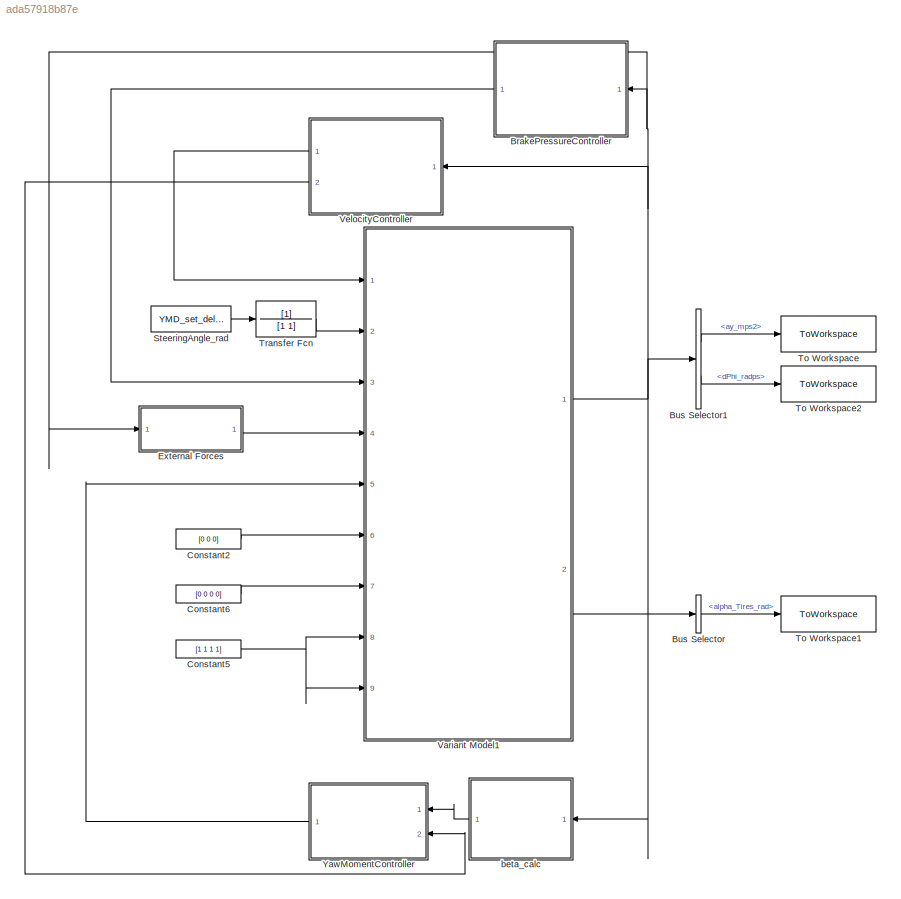
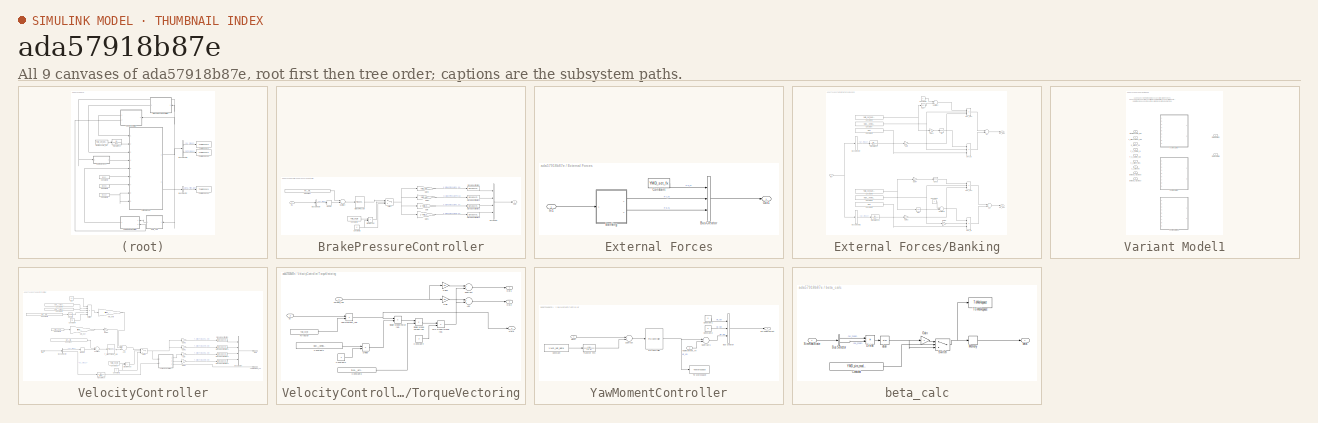
[diagram: thumbnail index - all 9 canvases of the model, root first then tree order]
MODEL slx_ada57918b87e
KIND model
WORKSPACE source: MAT-file member
WORKSPACE MCOS: class17 (value not decoded)
BLOCK [SubSystem] BrakePressureController
  Ports = [1, 1]
  RequestExecContextInheritance = off
BLOCK [Reference] BrakePressureController/BrakePressure  REF=simulink/Continuous/PID Controller
  Ports = [1, 1]
  SourceBlock = simulink/Continuous/PID Controller
  SourceProductBaseCode = SL
  SourceProductName = Simulink
  SourceType = PID 1dof
BLOCK [BusCreator] BrakePressureController/Bus Creator
  DisplayOption = bar
  InheritFromInputs = on
  Inputs = 4
  Ports = [4, 1]
BLOCK [BusSelector] BrakePressureController/Bus Selector
  OutputAsBus = off
  OutputSignals = vx_mps
  Ports = [1, 1]
BLOCK [Constant] BrakePressureController/Constant
  Value = INIT__initialvalues__Vehicle_InitialVelocity_mps__1
BLOCK [Constant] BrakePressureController/Constant1
  Value = YMD_set_fx
BLOCK [Constant] BrakePressureController/Constant2
  Value = 0
BLOCK [Gain] BrakePressureController/Gain
  Gain = 1-YMD_set_bb
  OutDataTypeStr = Inherit: Inherit via internal rule
  ParamDataTypeStr = Inherit: Inherit via internal rule
  SaturateOnIntegerOverflow = off
BLOCK [Gain] BrakePressureController/Gain1
  Gain = 1-YMD_set_bb
  OutDataTypeStr = Inherit: Inherit via internal rule
  ParamDataTypeStr = Inherit: Inherit via internal rule
  SaturateOnIntegerOverflow = off
BLOCK [Gain] BrakePressureController/Gain2
  Gain = YMD_set_bb
  OutDataTypeStr = Inherit: Inherit via internal rule
  ParamDataTypeStr = Inherit: Inherit via internal rule
  SaturateOnIntegerOverflow = off
BLOCK [Gain] BrakePressureController/Gain3
  Gain = YMD_set_bb
  OutDataTypeStr = Inherit: Inherit via internal rule
  ParamDataTypeStr = Inherit: Inherit via internal rule
  SaturateOnIntegerOverflow = off
BLOCK [RelationalOperator] BrakePressureController/GreaterThan
  InputSameDT = off
  Operator = >
  OutDataTypeStr = boolean
  Ports = [2, 1]
  RndMeth = Simplest
BLOCK [Inport] BrakePressureController/In1
  IconDisplay = Port number
BLOCK [Memory] BrakePressureController/Memory
  InitialCondition = INIT__initialvalues__Vehicle_InitialVelocity_mps__1
BLOCK [Outport] BrakePressureController/Out1
  IconDisplay = Port number
BLOCK [SignalSpecification] BrakePressureController/Signal Specification
  Dimensions = 1
BLOCK [SignalSpecification] BrakePressureController/Signal Specification1
  Dimensions = 1
BLOCK [SignalSpecification] BrakePressureController/Signal Specification2
  Dimensions = 1
BLOCK [SignalSpecification] BrakePressureController/Signal Specification3
  Dimensions = 1
BLOCK [Sum] BrakePressureController/Subtract
  InputSameDT = off
  Inputs = -+
  OutDataTypeStr = Inherit: Inherit via internal rule
  Ports = [2, 1]
  SaturateOnIntegerOverflow = off
BLOCK [Switch] BrakePressureController/Switch
  Criteria = u2 > Threshold
  InputSameDT = off
  SaturateOnIntegerOverflow = off
BLOCK [BusSelector] Bus Selector
  OutputAsBus = off
  OutputSignals = Wheel.alpha_Tires_rad
  Ports = [1, 1]
BLOCK [BusSelector] Bus Selector1
  OutputAsBus = off
  OutputSignals = ay_mps2,dPhi_radps
  Ports = [1, 2]
BLOCK [Constant] Constant2
  Value = [0 0 0]
BLOCK [Constant] Constant5
  Value = [1 1 1 1]
BLOCK [Constant] Constant6
  Value = [0 0 0 0]
BLOCK [SubSystem] External Forces
  Ports = [1, 1]
  RequestExecContextInheritance = off
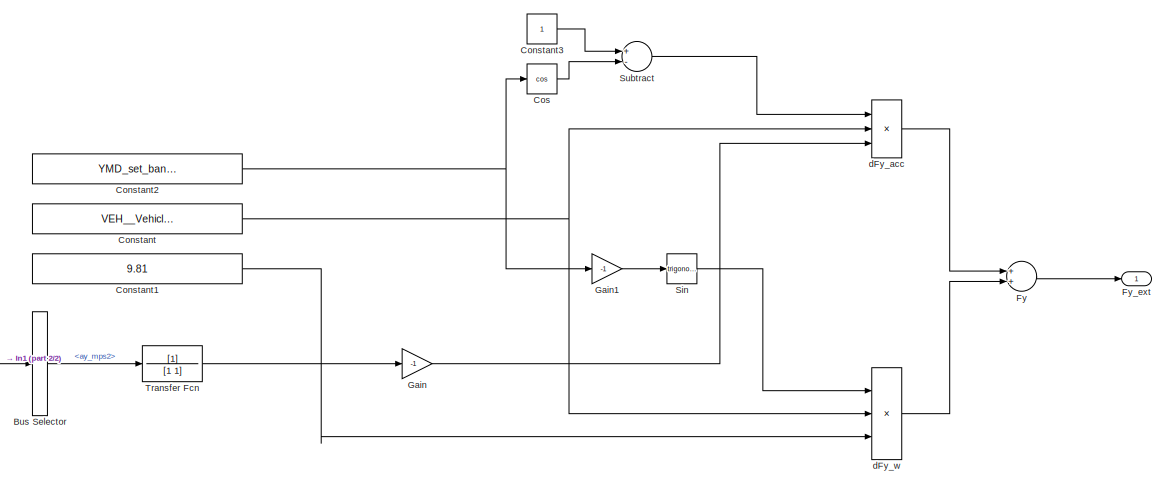
[diagram: External Forces/Banking - part 1/2, full width, top band]
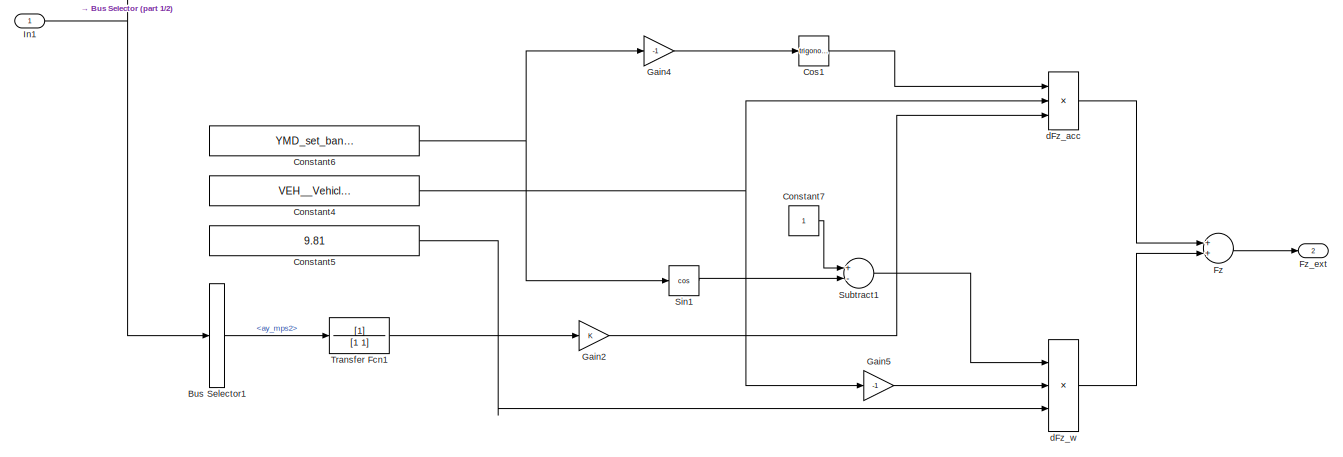
[diagram: External Forces/Banking - part 2/2, full width, bottom band]
BLOCK [SubSystem] External Forces/Banking
  Ports = [1, 2]
  RequestExecContextInheritance = off
BLOCK [BusSelector] External Forces/Banking/Bus Selector
  OutputAsBus = off
  OutputSignals = ay_mps2
  Ports = [1, 1]
BLOCK [BusSelector] External Forces/Banking/Bus Selector1
  OutputAsBus = off
  OutputSignals = ay_mps2
  Ports = [1, 1]
BLOCK [Constant] External Forces/Banking/Constant
  Value = VEH__VehicleData__m_Vehicle_kg
BLOCK [Constant] External Forces/Banking/Constant1
  Value = 9.81
BLOCK [Constant] External Forces/Banking/Constant2
  Value = YMD_set_banking
BLOCK [Constant] External Forces/Banking/Constant3
BLOCK [Constant] External Forces/Banking/Constant4
  Value = VEH__VehicleData__m_Vehicle_kg
BLOCK [Constant] External Forces/Banking/Constant5
  Value = 9.81
BLOCK [Constant] External Forces/Banking/Constant6
  Value = YMD_set_banking
BLOCK [Constant] External Forces/Banking/Constant7
BLOCK [Trigonometry] External Forces/Banking/Cos
  Operator = cos
  Ports = [1, 1]
BLOCK [Trigonometry] External Forces/Banking/Cos1
  Ports = [1, 1]
BLOCK [Sum] External Forces/Banking/Fy
  InputSameDT = off
  OutDataTypeStr = Inherit: Inherit via internal rule
  Ports = [2, 1]
  SaturateOnIntegerOverflow = off
BLOCK [Outport] External Forces/Banking/Fy_ext
  IconDisplay = Port number
BLOCK [Sum] External Forces/Banking/Fz
  InputSameDT = off
  OutDataTypeStr = Inherit: Inherit via internal rule
  Ports = [2, 1]
  SaturateOnIntegerOverflow = off
BLOCK [Outport] External Forces/Banking/Fz_ext
  IconDisplay = Port number
  Port = 2
BLOCK [Gain] External Forces/Banking/Gain
  Gain = -1
  OutDataTypeStr = Inherit: Inherit via internal rule
  ParamDataTypeStr = Inherit: Inherit via internal rule
  SaturateOnIntegerOverflow = off
BLOCK [Gain] External Forces/Banking/Gain1
  Gain = -1
  OutDataTypeStr = Inherit: Inherit via internal rule
  ParamDataTypeStr = Inherit: Inherit via internal rule
  SaturateOnIntegerOverflow = off
BLOCK [Gain] External Forces/Banking/Gain2
  OutDataTypeStr = Inherit: Inherit via internal rule
  ParamDataTypeStr = Inherit: Inherit via internal rule
  SaturateOnIntegerOverflow = off
BLOCK [Gain] External Forces/Banking/Gain4
  Gain = -1
  OutDataTypeStr = Inherit: Inherit via internal rule
  ParamDataTypeStr = Inherit: Inherit via internal rule
  SaturateOnIntegerOverflow = off
BLOCK [Gain] External Forces/Banking/Gain5
  Gain = -1
  OutDataTypeStr = Inherit: Inherit via internal rule
  ParamDataTypeStr = Inherit: Inherit via internal rule
  SaturateOnIntegerOverflow = off
BLOCK [Inport] External Forces/Banking/In1
  IconDisplay = Port number
BLOCK [Trigonometry] External Forces/Banking/Sin
  Ports = [1, 1]
BLOCK [Trigonometry] External Forces/Banking/Sin1
  Operator = cos
  Ports = [1, 1]
BLOCK [Sum] External Forces/Banking/Subtract
  InputSameDT = off
  Inputs = +-
  OutDataTypeStr = Inherit: Inherit via internal rule
  Ports = [2, 1]
  SaturateOnIntegerOverflow = off
BLOCK [Sum] External Forces/Banking/Subtract1
  InputSameDT = off
  Inputs = +-
  OutDataTypeStr = Inherit: Inherit via internal rule
  Ports = [2, 1]
  SaturateOnIntegerOverflow = off
BLOCK [TransferFcn] External Forces/Banking/Transfer Fcn
  Denominator = [1 1]
BLOCK [TransferFcn] External Forces/Banking/Transfer Fcn1
  Denominator = [1 1]
BLOCK [Product] External Forces/Banking/dFy_acc
  InputSameDT = off
  Inputs = 3
  OutDataTypeStr = Inherit: Inherit via internal rule
  Ports = [3, 1]
  RndMeth = Floor
  SaturateOnIntegerOverflow = off
BLOCK [Product] External Forces/Banking/dFy_w
  InputSameDT = off
  Inputs = 3
  OutDataTypeStr = Inherit: Inherit via internal rule
  Ports = [3, 1]
  RndMeth = Floor
  SaturateOnIntegerOverflow = off
BLOCK [Product] External Forces/Banking/dFz_acc
  InputSameDT = off
  Inputs = 3
  OutDataTypeStr = Inherit: Inherit via internal rule
  Ports = [3, 1]
  RndMeth = Floor
  SaturateOnIntegerOverflow = off
BLOCK [Product] External Forces/Banking/dFz_w
  InputSameDT = off
  Inputs = 3
  OutDataTypeStr = Inherit: Inherit via internal rule
  Ports = [3, 1]
  RndMeth = Floor
  SaturateOnIntegerOverflow = off
BLOCK [BusCreator] External Forces/Bus Creator
  DisplayOption = bar
  InheritFromInputs = on
  Inputs = 3
  Ports = [3, 1]
BLOCK [Constant] External Forces/Constant
  Value = YMD_set_fx
BLOCK [Inport] External Forces/In1
  IconDisplay = Port number
BLOCK [Outport] External Forces/Out1
  IconDisplay = Port number
BLOCK [Constant] SteeringAngle_rad
  Value = YMD_set_delta
BLOCK [ToWorkspace] To Workspace
  FixptAsFi = on
  MaxDataPoints = inf
  Ports = [1]
  SampleTime = -1
  Save2DSignal = 3-D array (concatenate along third dimension)
  SaveFormat = Timeseries
  VariableName = ay_mps2
BLOCK [ToWorkspace] To Workspace1
  FixptAsFi = on
  MaxDataPoints = inf
  Ports = [1]
  SampleTime = -1
  Save2DSignal = 3-D array (concatenate along third dimension)
  SaveFormat = Timeseries
  VariableName = alpha_rad
BLOCK [ToWorkspace] To Workspace2
  FixptAsFi = on
  MaxDataPoints = inf
  Ports = [1]
  SampleTime = -1
  Save2DSignal = 3-D array (concatenate along third dimension)
  SaveFormat = Timeseries
  VariableName = dphi_radps
BLOCK [TransferFcn] Transfer Fcn
  Denominator = [1 1]
BLOCK [SubSystem] Variant Model1
  Ports = [9, 2]
  RequestExecContextInheritance = off
  Variant = on
BLOCK [Inport] Variant Model1/F_K_Extern_N
  IconDisplay = Port number
  Port = 4
  PortDimensions = 3
BLOCK [Outport] Variant Model1/SimInformation
  IconDisplay = Port number
  OutDataTypeStr = Bus: SimInformation
  Port = 2
BLOCK [Outport] Variant Model1/SimRealState
  IconDisplay = Port number
  OutDataTypeStr = Bus: SimRealState
BLOCK [Inport] Variant Model1/SteeringAngle_rad
  IconDisplay = Port number
  Port = 2
BLOCK [Inport] Variant Model1/T_DriveTorque_Nm
  IconDisplay = Port number
BLOCK [Inport] Variant Model1/T_K_Extern_Nm
  IconDisplay = Port number
  Port = 5
  PortDimensions = 3
BLOCK [Inport] Variant Model1/lambda_Tji_muex
  IconDisplay = Port number
  Port = 8
  PortDimensions = 4
BLOCK [Inport] Variant Model1/lambda_Tji_muey
  IconDisplay = Port number
  Port = 9
  PortDimensions = 4
BLOCK [ModelReference] Variant Model1/nonlineardtm
  ModelNameDialog = nonlineardtm.slx
  ModelReferenceVersion = 1.737
  ParameterArgumentNames = x0_initialstates
  ParameterArgumentValues = [0 0 0 0 0 -pi/2]
  Ports = [9, 2]
  UsingDefaultArgumentValue = 0
  VariantControl = YMD_sim_model==1
BLOCK [ModelReference] Variant Model1/nonlineardtm V2
  ModelNameDialog = ndtm_V2.slx
  ModelReferenceVersion = 1.344
  ParameterArgumentNames = x0_initialstates
  ParameterArgumentValues = [0 0 0 0 0 -pi/2]
  Ports = [9, 2]
  UsingDefaultArgumentValue = 0
  VariantControl = YMD_sim_model==3
BLOCK [ModelReference] Variant Model1/nonlinearstm
  ModelNameDialog = nonlinearstm.slx
  ModelReferenceVersion = 1.404
  ParameterArgumentNames = x0_positionstates
  ParameterArgumentValues = [0 0 0]
  Ports = [9, 2]
  UsingDefaultArgumentValue = 0
  VariantControl = YMD_sim_model==2
BLOCK [Inport] Variant Model1/p_Brake_pa
  IconDisplay = Port number
  Port = 3
BLOCK [Inport] Variant Model1/v_I_Wind_mps
  IconDisplay = Port number
  Port = 6
  PortDimensions = 3
BLOCK [Inport] Variant Model1/z_I_Ground
  IconDisplay = Port number
  Port = 7
  PortDimensions = 4
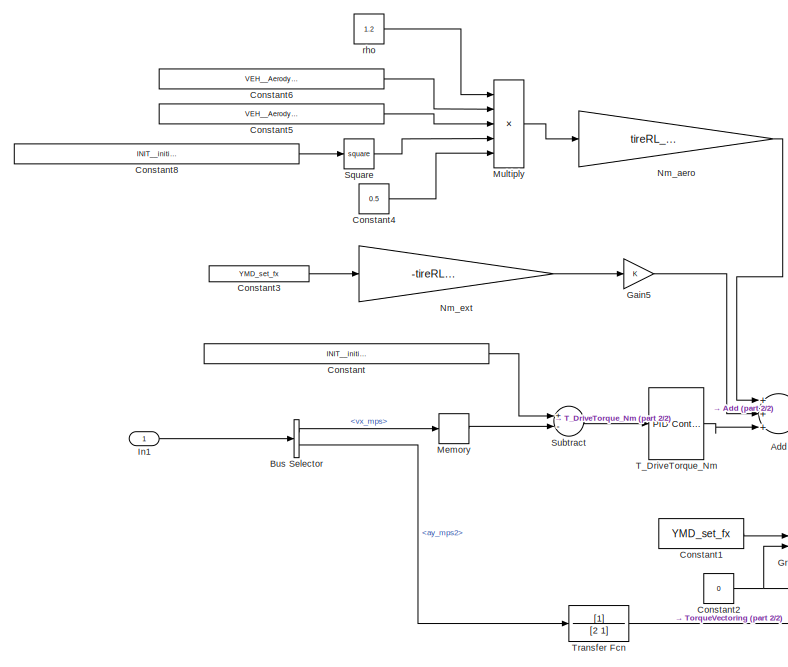
[diagram: VelocityController - part 1/2, left side, full height]
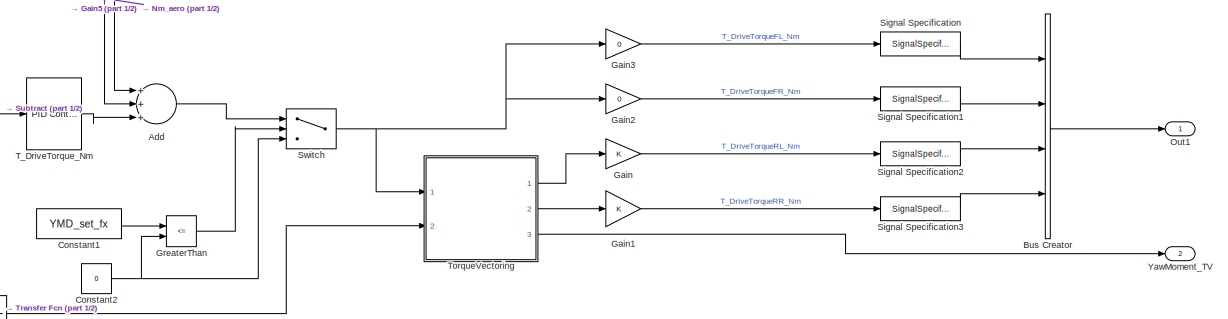
[diagram: VelocityController - part 2/2, bottom center region]
BLOCK [SubSystem] VelocityController
  Ports = [1, 2]
  RequestExecContextInheritance = off
BLOCK [Sum] VelocityController/Add
  InputSameDT = off
  Inputs = +++
  OutDataTypeStr = Inherit: Inherit via internal rule
  Ports = [3, 1]
  SaturateOnIntegerOverflow = off
BLOCK [BusCreator] VelocityController/Bus Creator
  DisplayOption = bar
  InheritFromInputs = on
  Inputs = 4
  Ports = [4, 1]
BLOCK [BusSelector] VelocityController/Bus Selector
  OutputAsBus = off
  OutputSignals = vx_mps,ay_mps2
  Ports = [1, 2]
BLOCK [Constant] VelocityController/Constant
  Value = INIT__initialvalues__Vehicle_InitialVelocity_mps__1
BLOCK [Constant] VelocityController/Constant1
  Value = YMD_set_fx
BLOCK [Constant] VelocityController/Constant2
  Value = 0
BLOCK [Constant] VelocityController/Constant3
  Value = YMD_set_fx
BLOCK [Constant] VelocityController/Constant4
  Value = 0.5
BLOCK [Constant] VelocityController/Constant5
  Value = VEH__Aerodynamics__A_LongitudinalDrag_m2
BLOCK [Constant] VelocityController/Constant6
  Value = VEH__Aerodynamics__cw_LongitudinalDrag
BLOCK [Constant] VelocityController/Constant8
  Value = INIT__initialvalues__Vehicle_InitialVelocity_mps__1
BLOCK [Gain] VelocityController/Gain
  OutDataTypeStr = Inherit: Inherit via internal rule
  ParamDataTypeStr = Inherit: Inherit via internal rule
  SaturateOnIntegerOverflow = off
BLOCK [Gain] VelocityController/Gain1
  OutDataTypeStr = Inherit: Inherit via internal rule
  ParamDataTypeStr = Inherit: Inherit via internal rule
  SaturateOnIntegerOverflow = off
BLOCK [Gain] VelocityController/Gain2
  Gain = 0
  OutDataTypeStr = Inherit: Inherit via internal rule
  ParamDataTypeStr = Inherit: Inherit via internal rule
  SaturateOnIntegerOverflow = off
BLOCK [Gain] VelocityController/Gain3
  Gain = 0
  OutDataTypeStr = Inherit: Inherit via internal rule
  ParamDataTypeStr = Inherit: Inherit via internal rule
  SaturateOnIntegerOverflow = off
BLOCK [Gain] VelocityController/Gain5
  OutDataTypeStr = Inherit: Inherit via internal rule
  ParamDataTypeStr = Inherit: Inherit via internal rule
  SaturateOnIntegerOverflow = off
BLOCK [RelationalOperator] VelocityController/GreaterThan
  InputSameDT = off
  Operator = <=
  OutDataTypeStr = boolean
  Ports = [2, 1]
  RndMeth = Simplest
BLOCK [Inport] VelocityController/In1
  IconDisplay = Port number
BLOCK [Memory] VelocityController/Memory
  InitialCondition = INIT__initialvalues__Vehicle_InitialVelocity_mps__1
BLOCK [Product] VelocityController/Multiply
  InputSameDT = off
  Inputs = 5
  OutDataTypeStr = Inherit: Inherit via internal rule
  Ports = [5, 1]
  RndMeth = Floor
  SaturateOnIntegerOverflow = off
BLOCK [Gain] VelocityController/Nm_aero
  Gain = tireRL__MFSIMPLE__r_tire_m
  OutDataTypeStr = Inherit: Inherit via internal rule
  ParamDataTypeStr = Inherit: Inherit via internal rule
  SaturateOnIntegerOverflow = off
BLOCK [Gain] VelocityController/Nm_ext
  Gain = -tireRL__MFSIMPLE__r_tire_m
  OutDataTypeStr = Inherit: Inherit via internal rule
  ParamDataTypeStr = Inherit: Inherit via internal rule
  SaturateOnIntegerOverflow = off
BLOCK [Outport] VelocityController/Out1
  IconDisplay = Port number
BLOCK [SignalSpecification] VelocityController/Signal Specification
  Dimensions = 1
BLOCK [SignalSpecification] VelocityController/Signal Specification1
  Dimensions = 1
BLOCK [SignalSpecification] VelocityController/Signal Specification2
  Dimensions = 1
BLOCK [SignalSpecification] VelocityController/Signal Specification3
  Dimensions = 1
BLOCK [Math] VelocityController/Square
  Operator = square
  Ports = [1, 1]
BLOCK [Sum] VelocityController/Subtract
  InputSameDT = off
  Inputs = +-
  OutDataTypeStr = Inherit: Inherit via internal rule
  Ports = [2, 1]
  SaturateOnIntegerOverflow = off
BLOCK [Switch] VelocityController/Switch
  Criteria = u2 > Threshold
  InputSameDT = off
  SaturateOnIntegerOverflow = off
BLOCK [Reference] VelocityController/T_DriveTorque_Nm  REF=simulink/Continuous/PID Controller
  Ports = [1, 1]
  SourceBlock = simulink/Continuous/PID Controller
  SourceProductBaseCode = SL
  SourceProductName = Simulink
  SourceType = PID 1dof
BLOCK [SubSystem] VelocityController/TorqueVectoring
  Ports = [2, 3]
  RequestExecContextInheritance = off
BLOCK [Sum] VelocityController/TorqueVectoring/Add
  InputSameDT = off
  OutDataTypeStr = Inherit: Inherit via internal rule
  Ports = [2, 1]
  SaturateOnIntegerOverflow = off
BLOCK [Constant] VelocityController/TorqueVectoring/Constant1
  Value = VEH__VehicleData__w_TrackR_m
BLOCK [Constant] VelocityController/TorqueVectoring/Constant2
  Value = 2
BLOCK [Constant] VelocityController/TorqueVectoring/Constant3
  Value = tireRL__MFSIMPLE__r_tire_m
BLOCK [Constant] VelocityController/TorqueVectoring/Constant4
  Value = 2
BLOCK [Product] VelocityController/TorqueVectoring/Divide
  InputSameDT = off
  Inputs = */
  OutDataTypeStr = Inherit: Inherit via internal rule
  Ports = [2, 1]
  RndMeth = Floor
  SaturateOnIntegerOverflow = off
BLOCK [Gain] VelocityController/TorqueVectoring/Gain
  Gain = 0.5
  OutDataTypeStr = Inherit: Inherit via internal rule
  ParamDataTypeStr = Inherit: Inherit via internal rule
  SaturateOnIntegerOverflow = off
BLOCK [Gain] VelocityController/TorqueVectoring/Gain1
  Gain = 0.5
  OutDataTypeStr = Inherit: Inherit via internal rule
  ParamDataTypeStr = Inherit: Inherit via internal rule
  SaturateOnIntegerOverflow = off
BLOCK [Outport] VelocityController/TorqueVectoring/Out1
  IconDisplay = Port number
BLOCK [Outport] VelocityController/TorqueVectoring/Out2
  IconDisplay = Port number
  Port = 2
BLOCK [Outport] VelocityController/TorqueVectoring/Out3
  IconDisplay = Port number
  Port = 3
BLOCK [Product] VelocityController/TorqueVectoring/Single Wheel Force req.
  InputSameDT = off
  Inputs = */
  OutDataTypeStr = Inherit: Inherit via internal rule
  Ports = [2, 1]
  RndMeth = Floor
  SaturateOnIntegerOverflow = off
BLOCK [Product] VelocityController/TorqueVectoring/Single Wheel Torque req.
  InputSameDT = off
  OutDataTypeStr = Inherit: Inherit via internal rule
  Ports = [2, 1]
  RndMeth = Floor
  SaturateOnIntegerOverflow = off
BLOCK [Sum] VelocityController/TorqueVectoring/Subtract
  InputSameDT = off
  Inputs = +-
  OutDataTypeStr = Inherit: Inherit via internal rule
  Ports = [2, 1]
  SaturateOnIntegerOverflow = off
BLOCK [Constant] VelocityController/TorqueVectoring/TV factor
  Value = YMD_set_tv
BLOCK [Inport] VelocityController/TorqueVectoring/Torque_req
  IconDisplay = Port number
BLOCK [Product] VelocityController/TorqueVectoring/Two wheel torque req.
  InputSameDT = off
  Inputs = */
  OutDataTypeStr = Inherit: Inherit via internal rule
  Ports = [2, 1]
  RndMeth = Floor
  SaturateOnIntegerOverflow = off
BLOCK [Product] VelocityController/TorqueVectoring/Yawmoment_req
  InputSameDT = off
  OutDataTypeStr = Inherit: Inherit via internal rule
  Ports = [2, 1]
  RndMeth = Floor
  SaturateOnIntegerOverflow = off
BLOCK [Inport] VelocityController/TorqueVectoring/ay
  IconDisplay = Port number
  Port = 2
BLOCK [TransferFcn] VelocityController/Transfer Fcn
  Denominator = [2 1]
BLOCK [Outport] VelocityController/YawMoment_TV
  IconDisplay = Port number
  Port = 2
BLOCK [Constant] VelocityController/rho
  Value = 1.2
BLOCK [SubSystem] YawMomentController
  Ports = [2, 1]
  RequestExecContextInheritance = off
BLOCK [BusCreator] YawMomentController/Bus Creator
  DisplayOption = bar
  InheritFromInputs = on
  Inputs = 3
  Ports = [3, 1]
BLOCK [Constant] YawMomentController/Constant
  Value = YMD_set_beta
BLOCK [Constant] YawMomentController/Constant1
  Value = 0
BLOCK [Constant] YawMomentController/Constant2
  Value = 0
BLOCK [Reference] YawMomentController/PID Controller  REF=simulink/Continuous/PID Controller
  Ports = [1, 1]
  SourceBlock = simulink/Continuous/PID Controller
  SourceProductBaseCode = SL
  SourceProductName = Simulink
  SourceType = PID 1dof
BLOCK [Sum] YawMomentController/Subtract
  InputSameDT = off
  Inputs = -+
  OutDataTypeStr = Inherit: Inherit via internal rule
  Ports = [2, 1]
  SaturateOnIntegerOverflow = off
BLOCK [Sum] YawMomentController/Subtract1
  InputSameDT = off
  Inputs = +-
  OutDataTypeStr = Inherit: Inherit via internal rule
  Ports = [2, 1]
  SaturateOnIntegerOverflow = off
BLOCK [ToWorkspace] YawMomentController/To Workspace
  FixptAsFi = on
  MaxDataPoints = inf
  Ports = [1]
  SampleTime = -1
  Save2DSignal = 3-D array (concatenate along third dimension)
  SaveFormat = Timeseries
  VariableName = YMD_extYawMoment
BLOCK [TransferFcn] YawMomentController/Transfer Fcn
  Denominator = [1 1]
BLOCK [Inport] YawMomentController/YawMoment_TV
  IconDisplay = Port number
  Port = 2
BLOCK [Inport] YawMomentController/beta
  IconDisplay = Port number
BLOCK [Outport] YawMomentController/extYawMoment
  IconDisplay = Port number
BLOCK [SubSystem] beta_calc
  Ports = [1, 1]
  RequestExecContextInheritance = off
BLOCK [BusSelector] beta_calc/Bus Selector
  OutputAsBus = off
  OutputSignals = vy_mps,vx_mps
  Ports = [1, 2]
BLOCK [Constant] beta_calc/Constant
  Value = YMD_sim_model
BLOCK [Product] beta_calc/Divide
  InputSameDT = off
  Inputs = */
  OutDataTypeStr = Inherit: Inherit via internal rule
  Ports = [2, 1]
  RndMeth = Floor
  SaturateOnIntegerOverflow = off
BLOCK [Gain] beta_calc/Gain
  Gain = -1
  OutDataTypeStr = Inherit: Inherit via internal rule
  ParamDataTypeStr = Inherit: Inherit via internal rule
  SaturateOnIntegerOverflow = off
BLOCK [Memory] beta_calc/Memory
BLOCK [Inport] beta_calc/SimRealState
  IconDisplay = Port number
BLOCK [Switch] beta_calc/Switch
  Criteria = u2 > Threshold
  InputSameDT = off
  SaturateOnIntegerOverflow = off
  Threshold = 1
BLOCK [ToWorkspace] beta_calc/To Workspace
  FixptAsFi = on
  MaxDataPoints = inf
  Ports = [1]
  SampleTime = -1
  Save2DSignal = 3-D array (concatenate along third dimension)
  SaveFormat = Timeseries
  VariableName = YMD_beta_calc
BLOCK [Trigonometry] beta_calc/atan
  Operator = atan
  Ports = [1, 1]
BLOCK [Outport] beta_calc/beta
  IconDisplay = Port number
ANNOTATION Variant Model1: 1) Add Subsystem or Model blocks as valid variant choices. 2) You cannot connect blocks at this level. At simulation, connectivity is automatically determined, based on the active variant and port name matching.
LINE BrakePressureController/BrakePressure:1 -> BrakePressureController/Switch:1
LINE BrakePressureController/Bus Creator:1 -> BrakePressureController/Out1:1
LINE BrakePressureController/Bus Selector:1 -> BrakePressureController/Memory:1
LINE BrakePressureController/Constant1:1 -> BrakePressureController/GreaterThan:1
NET BrakePressureController/Constant2:1 -> BrakePressureController/GreaterThan:2, BrakePressureController/Switch:3
LINE BrakePressureController/Constant:1 -> BrakePressureController/Subtract:1
LINE BrakePressureController/Gain1:1 -> BrakePressureController/Signal Specification3:1
LINE BrakePressureController/Gain2:1 -> BrakePressureController/Signal Specification1:1
LINE BrakePressureController/Gain3:1 -> BrakePressureController/Signal Specification:1
LINE BrakePressureController/Gain:1 -> BrakePressureController/Signal Specification2:1
LINE BrakePressureController/GreaterThan:1 -> BrakePressureController/Switch:2
LINE BrakePressureController/In1:1 -> BrakePressureController/Bus Selector:1
LINE BrakePressureController/Memory:1 -> BrakePressureController/Subtract:2
LINE BrakePressureController/Signal Specification1:1 -> BrakePressureController/Bus Creator:2
LINE BrakePressureController/Signal Specification2:1 -> BrakePressureController/Bus Creator:3
LINE BrakePressureController/Signal Specification3:1 -> BrakePressureController/Bus Creator:4
LINE BrakePressureController/Signal Specification:1 -> BrakePressureController/Bus Creator:1
LINE BrakePressureController/Subtract:1 -> BrakePressureController/BrakePressure:1
NET BrakePressureController/Switch:1 -> BrakePressureController/Gain1:1, BrakePressureController/Gain2:1, BrakePressureController/Gain3:1, BrakePressureController/Gain:1
LINE BrakePressureController:1 -> Variant Model1:3
LINE Bus Selector1:1 -> To Workspace:1
LINE Bus Selector1:2 -> To Workspace2:1
LINE Bus Selector:1 -> To Workspace1:1
LINE Constant2:1 -> Variant Model1:6
NET Constant5:1 -> Variant Model1:8, Variant Model1:9
LINE Constant6:1 -> Variant Model1:7
LINE External Forces/Banking/Bus Selector1:1 -> External Forces/Banking/Transfer Fcn1:1
LINE External Forces/Banking/Bus Selector:1 -> External Forces/Banking/Transfer Fcn:1
LINE External Forces/Banking/Constant1:1 -> External Forces/Banking/dFy_w:3
NET External Forces/Banking/Constant2:1 -> External Forces/Banking/Cos:1, External Forces/Banking/Gain1:1
LINE External Forces/Banking/Constant3:1 -> External Forces/Banking/Subtract:1
NET External Forces/Banking/Constant4:1 -> External Forces/Banking/Gain5:1, External Forces/Banking/dFz_acc:2
LINE External Forces/Banking/Constant5:1 -> External Forces/Banking/dFz_w:3
NET External Forces/Banking/Constant6:1 -> External Forces/Banking/Gain4:1, External Forces/Banking/Sin1:1
LINE External Forces/Banking/Constant7:1 -> External Forces/Banking/Subtract1:1
NET External Forces/Banking/Constant:1 -> External Forces/Banking/dFy_acc:2, External Forces/Banking/dFy_w:2
LINE External Forces/Banking/Cos1:1 -> External Forces/Banking/dFz_acc:1
LINE External Forces/Banking/Cos:1 -> External Forces/Banking/Subtract:2
LINE External Forces/Banking/Fy:1 -> External Forces/Banking/Fy_ext:1
LINE External Forces/Banking/Fz:1 -> External Forces/Banking/Fz_ext:1
LINE External Forces/Banking/Gain1:1 -> External Forces/Banking/Sin:1
LINE External Forces/Banking/Gain2:1 -> External Forces/Banking/dFz_acc:3
LINE External Forces/Banking/Gain4:1 -> External Forces/Banking/Cos1:1
LINE External Forces/Banking/Gain5:1 -> External Forces/Banking/dFz_w:2
LINE External Forces/Banking/Gain:1 -> External Forces/Banking/dFy_acc:3
NET External Forces/Banking/In1:1 -> External Forces/Banking/Bus Selector1:1, External Forces/Banking/Bus Selector:1
LINE External Forces/Banking/Sin1:1 -> External Forces/Banking/Subtract1:2
LINE External Forces/Banking/Sin:1 -> External Forces/Banking/dFy_w:1
LINE External Forces/Banking/Subtract1:1 -> External Forces/Banking/dFz_w:1
LINE External Forces/Banking/Subtract:1 -> External Forces/Banking/dFy_acc:1
LINE External Forces/Banking/Transfer Fcn1:1 -> External Forces/Banking/Gain2:1
LINE External Forces/Banking/Transfer Fcn:1 -> External Forces/Banking/Gain:1
LINE External Forces/Banking/dFy_acc:1 -> External Forces/Banking/Fy:1
LINE External Forces/Banking/dFy_w:1 -> External Forces/Banking/Fy:2
LINE External Forces/Banking/dFz_acc:1 -> External Forces/Banking/Fz:1
LINE External Forces/Banking/dFz_w:1 -> External Forces/Banking/Fz:2
LINE External Forces/Banking:1 -> External Forces/Bus Creator:2
LINE External Forces/Banking:2 -> External Forces/Bus Creator:3
LINE External Forces/Bus Creator:1 -> External Forces/Out1:1
LINE External Forces/Constant:1 -> External Forces/Bus Creator:1
LINE External Forces/In1:1 -> External Forces/Banking:1
LINE External Forces:1 -> Variant Model1:4
LINE SteeringAngle_rad:1 -> Transfer Fcn:1
LINE Transfer Fcn:1 -> Variant Model1:2
NET Variant Model1:1 -> BrakePressureController:1, Bus Selector1:1, External Forces:1, VelocityController:1, beta_calc:1
LINE Variant Model1:2 -> Bus Selector:1
LINE VelocityController/Add:1 -> VelocityController/Switch:1
LINE VelocityController/Bus Creator:1 -> VelocityController/Out1:1
LINE VelocityController/Bus Selector:1 -> VelocityController/Memory:1
LINE VelocityController/Bus Selector:2 -> VelocityController/Transfer Fcn:1
LINE VelocityController/Constant1:1 -> VelocityController/GreaterThan:1
NET VelocityController/Constant2:1 -> VelocityController/GreaterThan:2, VelocityController/Switch:3
LINE VelocityController/Constant3:1 -> VelocityController/Nm_ext:1
LINE VelocityController/Constant4:1 -> VelocityController/Multiply:5
LINE VelocityController/Constant5:1 -> VelocityController/Multiply:3
LINE VelocityController/Constant6:1 -> VelocityController/Multiply:2
LINE VelocityController/Constant8:1 -> VelocityController/Square:1
LINE VelocityController/Constant:1 -> VelocityController/Subtract:1
LINE VelocityController/Gain1:1 -> VelocityController/Signal Specification3:1
LINE VelocityController/Gain2:1 -> VelocityController/Signal Specification1:1
LINE VelocityController/Gain3:1 -> VelocityController/Signal Specification:1
LINE VelocityController/Gain5:1 -> VelocityController/Add:2
LINE VelocityController/Gain:1 -> VelocityController/Signal Specification2:1
LINE VelocityController/GreaterThan:1 -> VelocityController/Switch:2
LINE VelocityController/In1:1 -> VelocityController/Bus Selector:1
LINE VelocityController/Memory:1 -> VelocityController/Subtract:2
LINE VelocityController/Multiply:1 -> VelocityController/Nm_aero:1
LINE VelocityController/Nm_aero:1 -> VelocityController/Add:1
LINE VelocityController/Nm_ext:1 -> VelocityController/Gain5:1
LINE VelocityController/Signal Specification1:1 -> VelocityController/Bus Creator:2
LINE VelocityController/Signal Specification2:1 -> VelocityController/Bus Creator:3
LINE VelocityController/Signal Specification3:1 -> VelocityController/Bus Creator:4
LINE VelocityController/Signal Specification:1 -> VelocityController/Bus Creator:1
LINE VelocityController/Square:1 -> VelocityController/Multiply:4
LINE VelocityController/Subtract:1 -> VelocityController/T_DriveTorque_Nm:1
NET VelocityController/Switch:1 -> VelocityController/Gain2:1, VelocityController/Gain3:1, VelocityController/TorqueVectoring:1
LINE VelocityController/T_DriveTorque_Nm:1 -> VelocityController/Add:3
LINE VelocityController/TorqueVectoring/Add:1 -> VelocityController/TorqueVectoring/Out2:1
LINE VelocityController/TorqueVectoring/Constant1:1 -> VelocityController/TorqueVectoring/Divide:1
LINE VelocityController/TorqueVectoring/Constant2:1 -> VelocityController/TorqueVectoring/Divide:2
LINE VelocityController/TorqueVectoring/Constant3:1 -> VelocityController/TorqueVectoring/Single Wheel Torque req.:2
LINE VelocityController/TorqueVectoring/Constant4:1 -> VelocityController/TorqueVectoring/Two wheel torque req.:2
LINE VelocityController/TorqueVectoring/Divide:1 -> VelocityController/TorqueVectoring/Single Wheel Force req.:2
LINE VelocityController/TorqueVectoring/Gain1:1 -> VelocityController/TorqueVectoring/Subtract:1
LINE VelocityController/TorqueVectoring/Gain:1 -> VelocityController/TorqueVectoring/Add:1
LINE VelocityController/TorqueVectoring/Single Wheel Force req.:1 -> VelocityController/TorqueVectoring/Single Wheel Torque req.:1
LINE VelocityController/TorqueVectoring/Single Wheel Torque req.:1 -> VelocityController/TorqueVectoring/Two wheel torque req.:1
LINE VelocityController/TorqueVectoring/Subtract:1 -> VelocityController/TorqueVectoring/Out1:1
LINE VelocityController/TorqueVectoring/TV factor:1 -> VelocityController/TorqueVectoring/Yawmoment_req:2
NET VelocityController/TorqueVectoring/Torque_req:1 -> VelocityController/TorqueVectoring/Gain1:1, VelocityController/TorqueVectoring/Gain:1
NET VelocityController/TorqueVectoring/Two wheel torque req.:1 -> VelocityController/TorqueVectoring/Add:2, VelocityController/TorqueVectoring/Subtract:2
NET VelocityController/TorqueVectoring/Yawmoment_req:1 -> VelocityController/TorqueVectoring/Out3:1, VelocityController/TorqueVectoring/Single Wheel Force req.:1
LINE VelocityController/TorqueVectoring/ay:1 -> VelocityController/TorqueVectoring/Yawmoment_req:1
LINE VelocityController/TorqueVectoring:1 -> VelocityController/Gain:1
LINE VelocityController/TorqueVectoring:2 -> VelocityController/Gain1:1
LINE VelocityController/TorqueVectoring:3 -> VelocityController/YawMoment_TV:1
LINE VelocityController/Transfer Fcn:1 -> VelocityController/TorqueVectoring:2
LINE VelocityController/rho:1 -> VelocityController/Multiply:1
LINE VelocityController:1 -> Variant Model1:1
LINE VelocityController:2 -> YawMomentController:2
LINE YawMomentController/Bus Creator:1 -> YawMomentController/extYawMoment:1
LINE YawMomentController/Constant1:1 -> YawMomentController/Bus Creator:1
LINE YawMomentController/Constant2:1 -> YawMomentController/Bus Creator:2
LINE YawMomentController/Constant:1 -> YawMomentController/Transfer Fcn:1
NET YawMomentController/PID Controller:1 -> YawMomentController/Subtract1:1, YawMomentController/To Workspace:1
LINE YawMomentController/Subtract1:1 -> YawMomentController/Bus Creator:3
LINE YawMomentController/Subtract:1 -> YawMomentController/PID Controller:1
LINE YawMomentController/Transfer Fcn:1 -> YawMomentController/Subtract:2
LINE YawMomentController/YawMoment_TV:1 -> YawMomentController/Subtract1:2
LINE YawMomentController/beta:1 -> YawMomentController/Subtract:1
LINE YawMomentController:1 -> Variant Model1:5
LINE beta_calc/Bus Selector:1 -> beta_calc/Divide:1
LINE beta_calc/Bus Selector:2 -> beta_calc/Divide:2
LINE beta_calc/Constant:1 -> beta_calc/Switch:2
LINE beta_calc/Divide:1 -> beta_calc/atan:1
LINE beta_calc/Gain:1 -> beta_calc/Switch:1
LINE beta_calc/Memory:1 -> beta_calc/beta:1
LINE beta_calc/SimRealState:1 -> beta_calc/Bus Selector:1
NET beta_calc/Switch:1 -> beta_calc/Memory:1, beta_calc/To Workspace:1
NET beta_calc/atan:1 -> beta_calc/Gain:1, beta_calc/Switch:3
LINE beta_calc:1 -> YawMomentController:1
note: NET lines group one-source signal fan-out (src -> all destinations, sorted); 1:1 wires keep LINE
